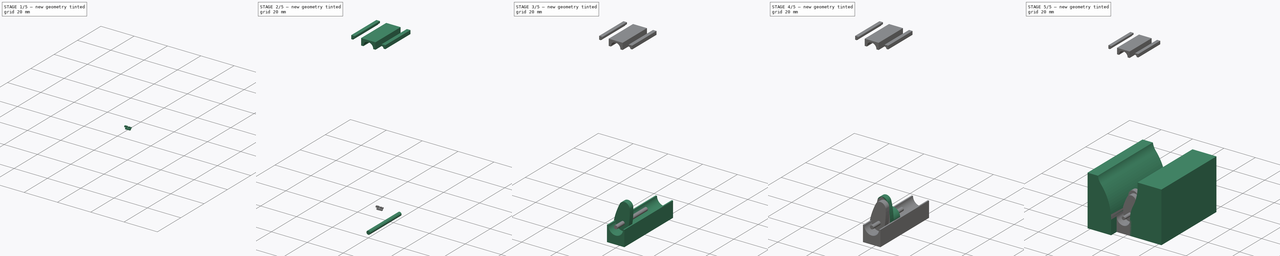
[diagram: build sequence overview — one tinted view per stage of 5, left to right]
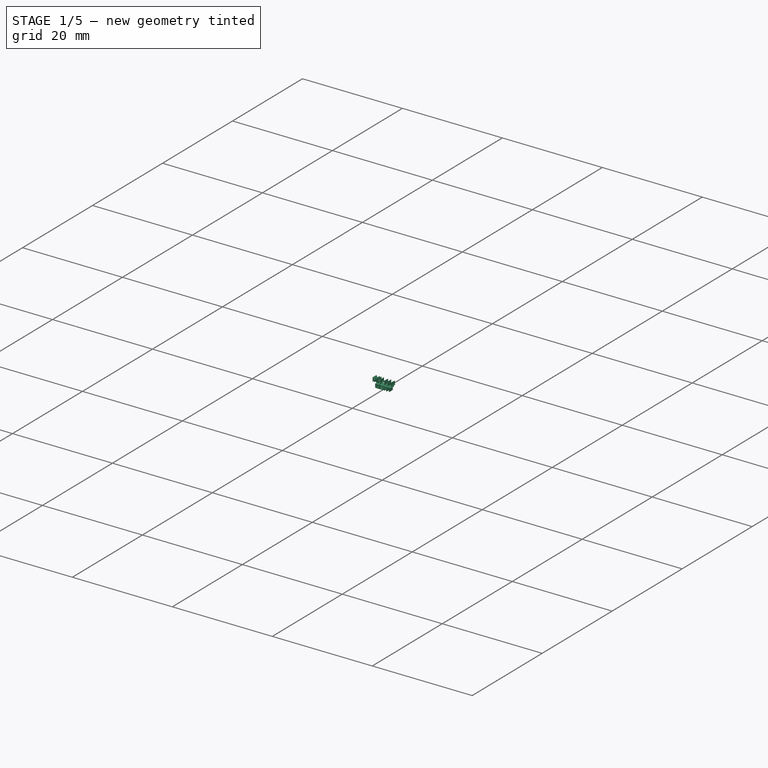
[diagram: stage 1 of 5 — iso view after this stage's code; geometry added in this stage tinted green]
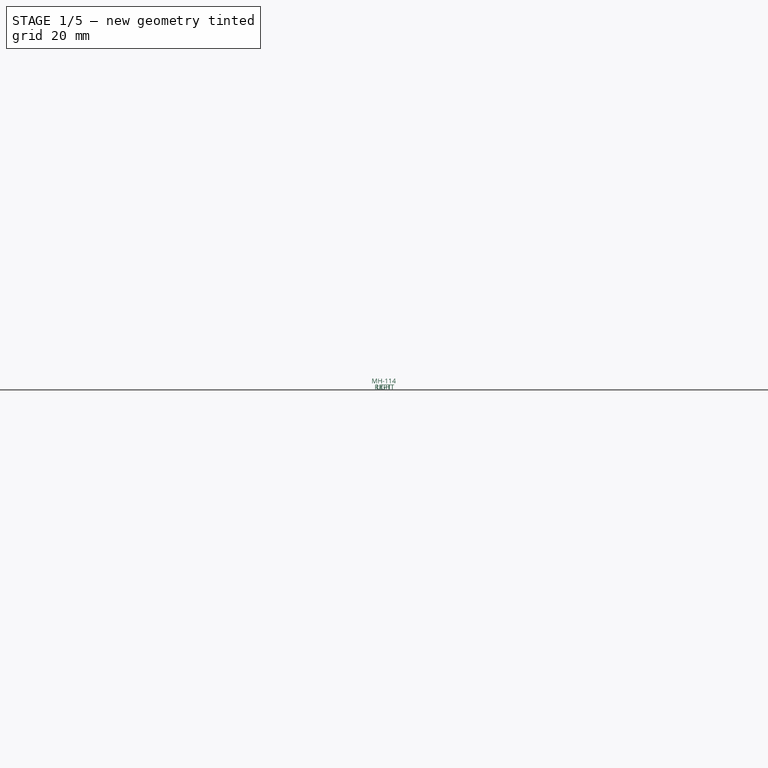
[diagram: stage 1 of 5 — front view after this stage's code; geometry added in this stage tinted green]
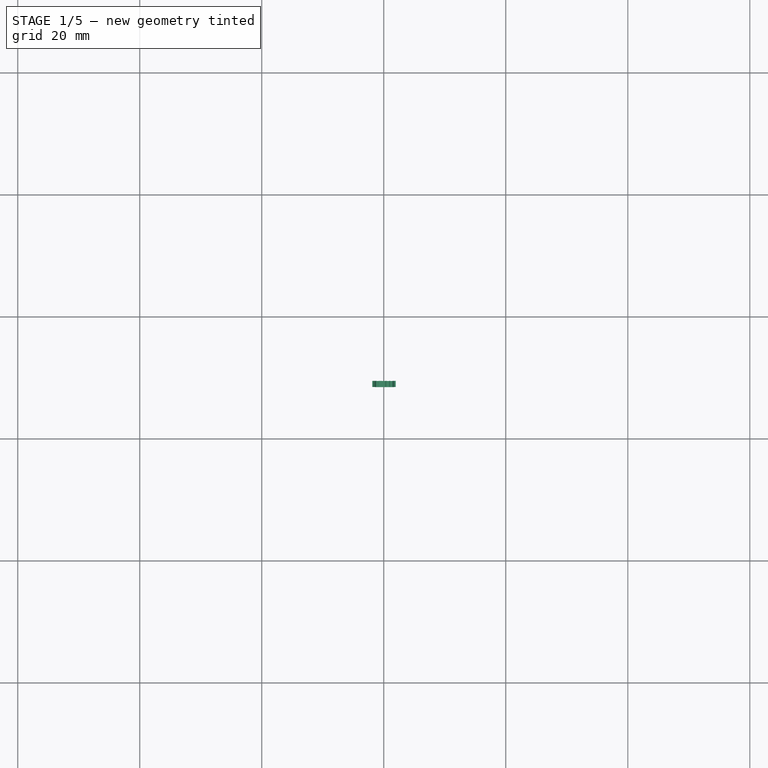
[diagram: stage 1 of 5 — top view after this stage's code; geometry added in this stage tinted green]
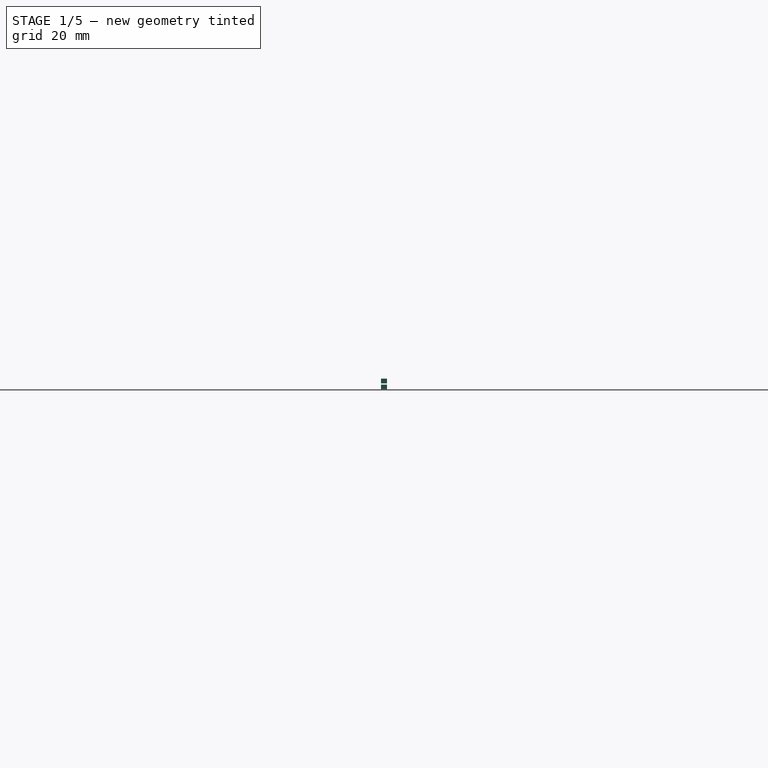
[diagram: stage 1 of 5 — right view after this stage's code; geometry added in this stage tinted green]
FCSTD DOCUMENT  (FreeCAD 0.16R6712 (Git))
Label: ControlReferenceGeometry
License: All rights reserved
LicenseURL: http://en.wikipedia.org/wiki/All_rights_reserved
objects: Part::Extrusion×11, Part::FeaturePython×9, Sketcher::SketchObject×6, Part::Part2DObjectPython×4
note: 30 computed .brp shape members not serialized (recipe doc carries the construction recipe); baked Part::Feature solids carry a one-line shape summary decoded from their .brp

FEATURE [Part::Part2DObjectPython] ShapeString  # Draft 2D object (typed FeaturePython)
  FontFile = <userpath> Eslinger/Desktop/MavicRetwist/OpenSans-Regular.ttf
  Placement = pos=(0,0,0) rot=(1,0,0;1.5708rad)
  Size = 1
  String = MH-114
  Tracking = 0
FEATURE [Part::Extrusion] Extrude013
  Base = -> ShapeString
  Dir = (0,1,0)
  Placement = pos=(-2,8.5,18) rot=(0,0,1;0rad)
  Solid = false
FEATURE [Part::Part2DObjectPython] ShapeString001  # Draft 2D object (typed FeaturePython)
  FontFile = <userpath> Eslinger/Desktop/MavicRetwist/OpenSans-Regular.ttf
  Placement = pos=(0,0,0) rot=(1,0,0;1.5708rad)
  Size = 1
  String = MH-114
  Tracking = 0
FEATURE [Part::Extrusion] Extrude014
  Base = -> ShapeString001
  Dir = (0,1,0)
  Placement = pos=(-2,8.5,18) rot=(0,0,1;0rad)
  Solid = false
FEATURE [Part::Part2DObjectPython] ShapeString002  # Draft 2D object (typed FeaturePython)
  FontFile = <userpath> Eslinger/Desktop/MavicRetwist/OpenSans-Regular.ttf
  Placement = pos=(0,0,0) rot=(1,0,0;1.5708rad)
  Size = 1
  String = LEFT
  Tracking = 0
FEATURE [Part::Extrusion] Extrude015  label="LEFT_Description"
  Base = -> ShapeString002
  Dir = (0,1,0)
  Placement = pos=(-1.25,8.5,17) rot=(0,0,1;0rad)
  Solid = false
FEATURE [Part::Part2DObjectPython] ShapeString003  # Draft 2D object (typed FeaturePython)
  FontFile = <userpath> Eslinger/Desktop/MavicRetwist/OpenSans-Regular.ttf
  Placement = pos=(0,0,0) rot=(1,0,0;1.5708rad)
  Size = 1
  String = RIGHT
  Tracking = 0
FEATURE [Part::Extrusion] Extrude016  label="RIGHT_Description"
  Base = -> ShapeString003
  Dir = (0,1,0)
  Placement = pos=(-1.5,8.5,17) rot=(0,0,1;0rad)
  Solid = false
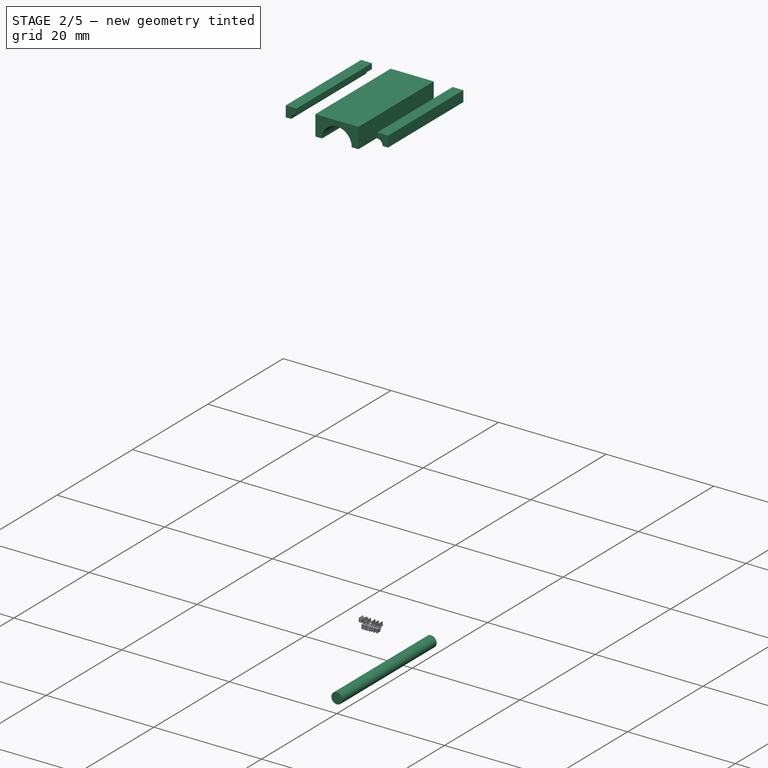
[diagram: stage 2 of 5 — iso view after this stage's code; geometry added in this stage tinted green]
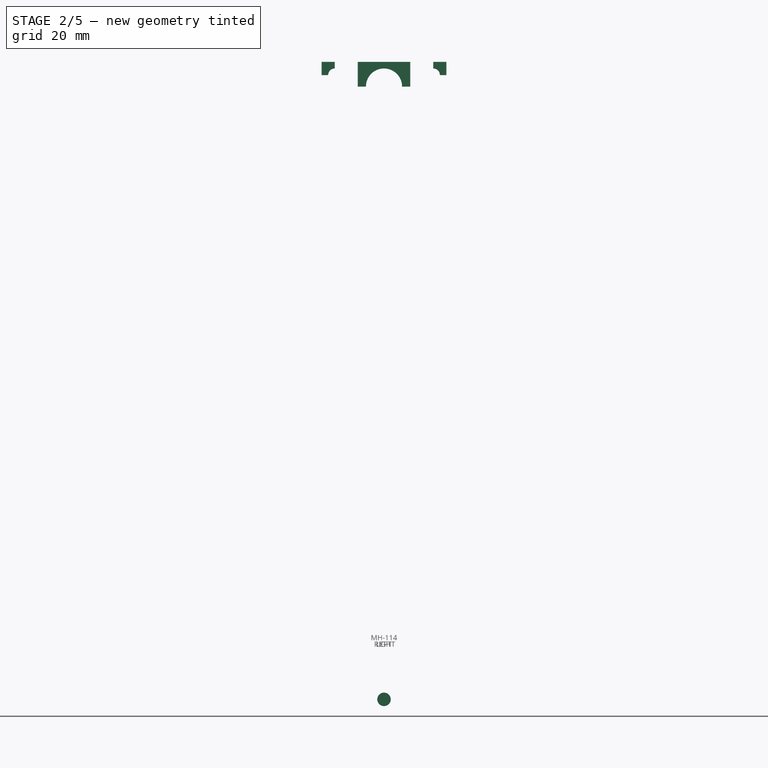
[diagram: stage 2 of 5 — front view after this stage's code; geometry added in this stage tinted green]
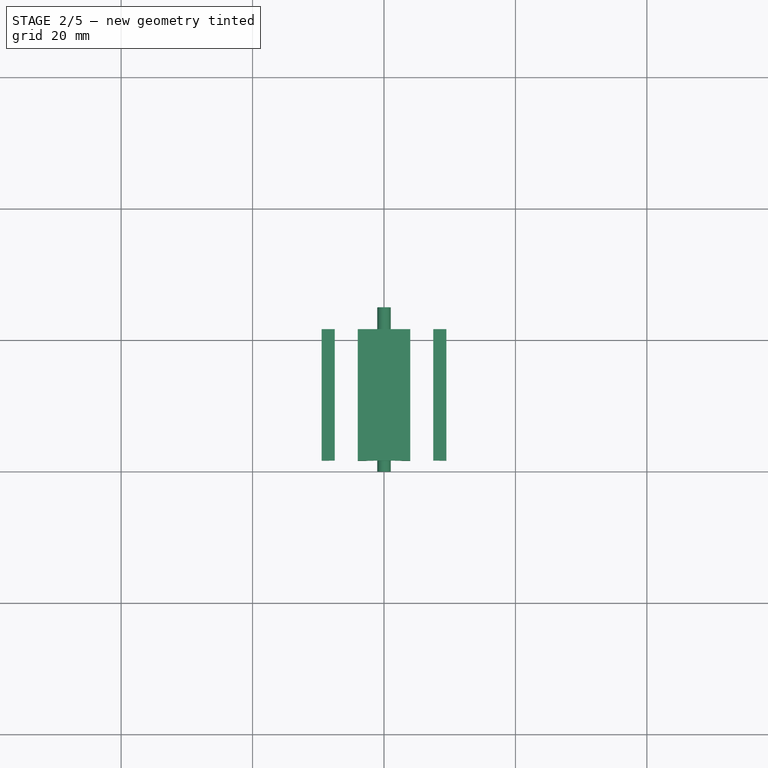
[diagram: stage 2 of 5 — top view after this stage's code; geometry added in this stage tinted green]
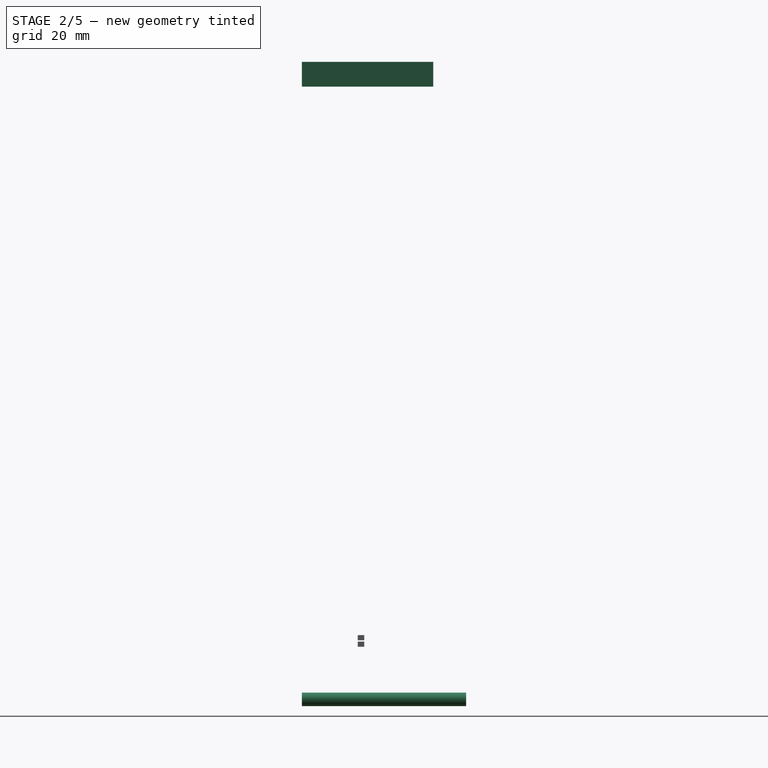
[diagram: stage 2 of 5 — right view after this stage's code; geometry added in this stage tinted green]
FEATURE [Part::Extrusion] Extrude007
  Base = -> Sketch005
  Dir = (0,25,0)
  Solid = true
FEATURE [Part::FeaturePython] Clone007  label="Clone of Extrude008"  # Draft clone (typed FeaturePython)
  Objects = -> [Extrude007]
  Scale = (1,1,1)
FEATURE [Part::Extrusion] Extrude012  label="RightHandTipRadius"
  Dir = (0,20,0)
  Solid = true
FEATURE [Part::FeaturePython] Clone008  label="LeftHandTipRadius"  # WARN: FeaturePython — macro-defined, semantics opaque (R4)
  Placement = pos=(0,20,0) rot=(0,0,1;3.14159rad)
  Scale = (1,1,1)
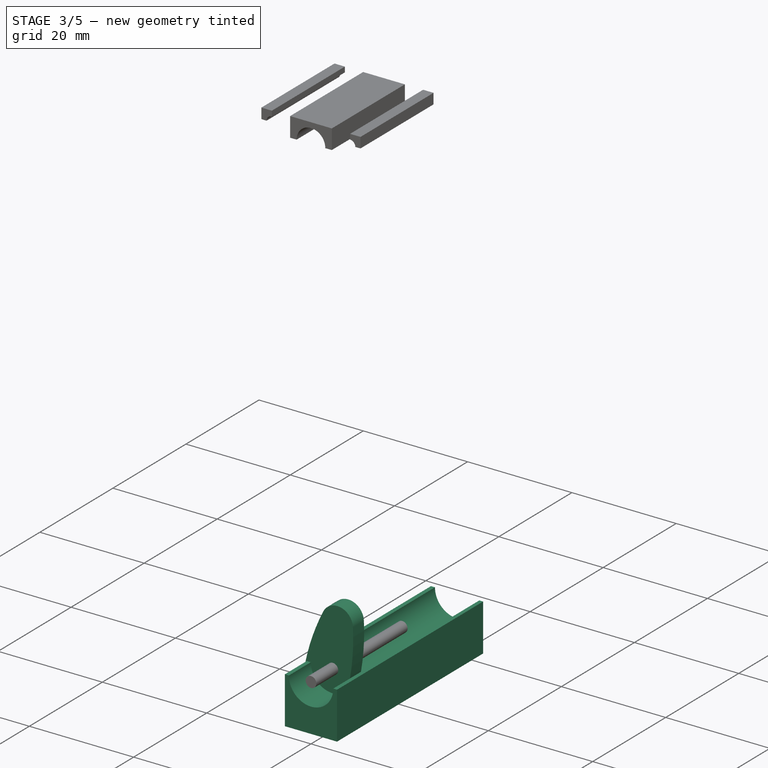
[diagram: stage 3 of 5 — iso view after this stage's code; geometry added in this stage tinted green]
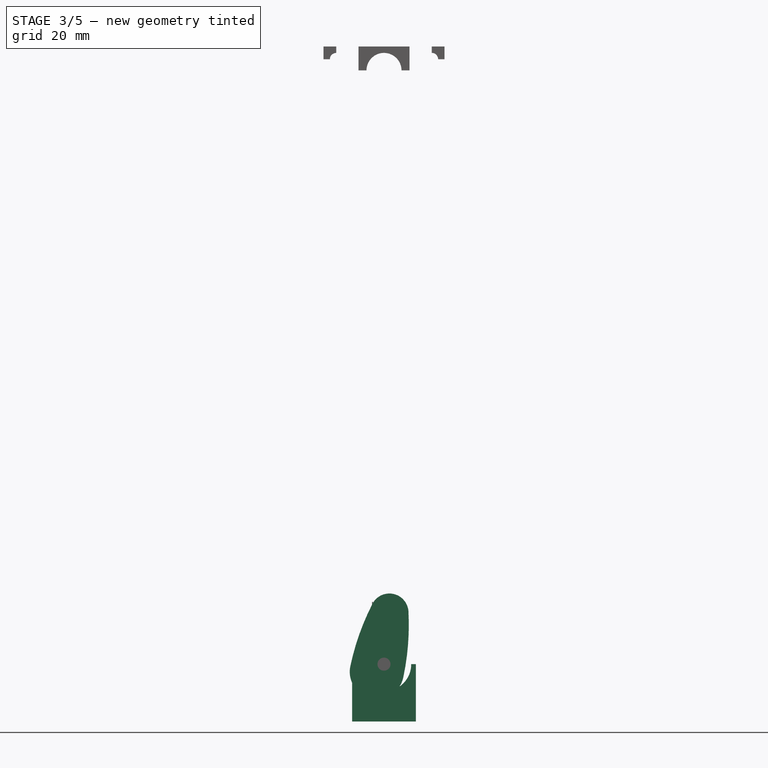
[diagram: stage 3 of 5 — front view after this stage's code; geometry added in this stage tinted green]
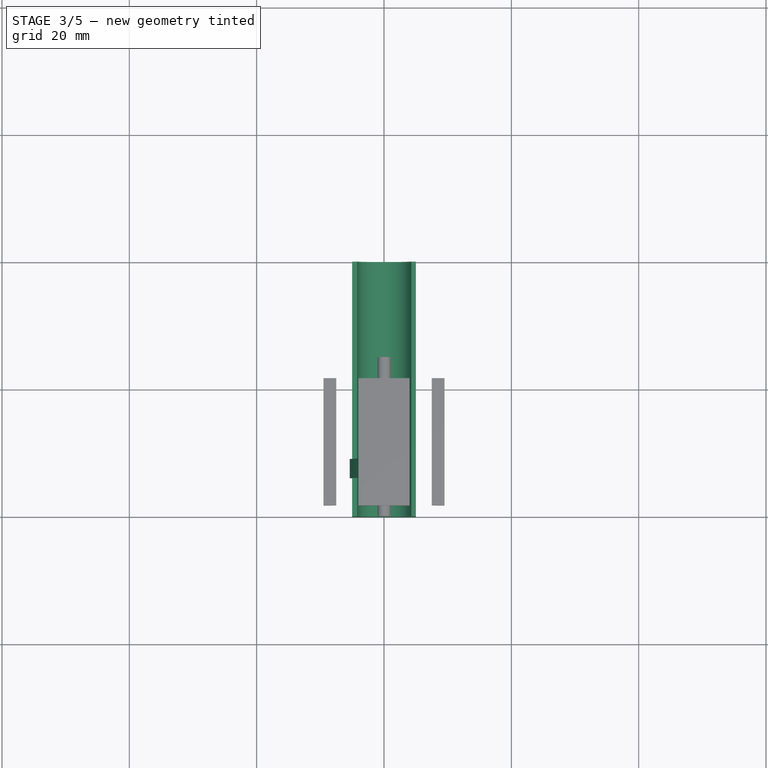
[diagram: stage 3 of 5 — top view after this stage's code; geometry added in this stage tinted green]
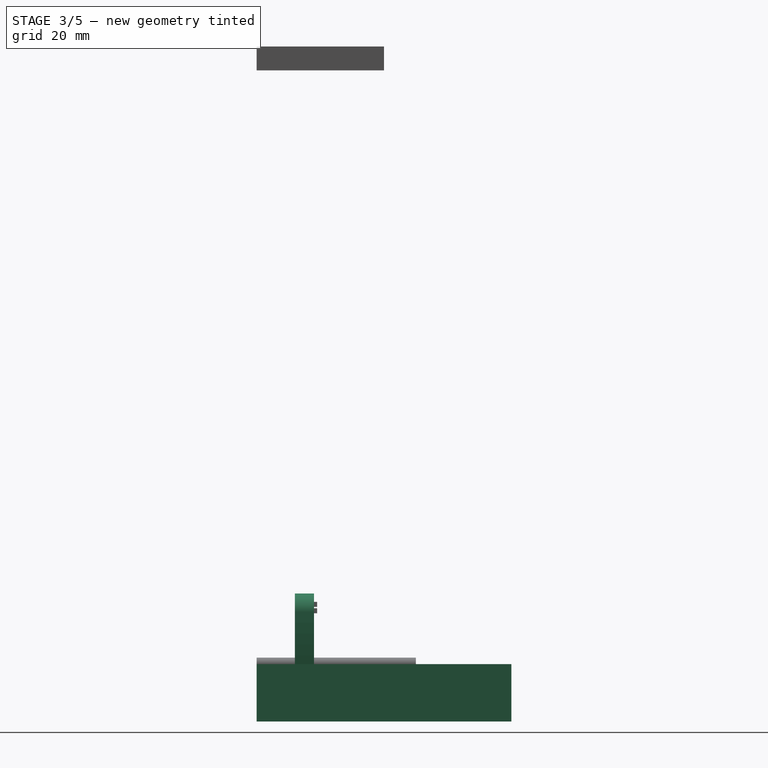
[diagram: stage 3 of 5 — right view after this stage's code; geometry added in this stage tinted green]
FEATURE [Sketcher::SketchObject] Sketch003
  Placement = pos=(0,0,0) rot=(1,0,0;1.5708rad)
  sketch-geometry (6):
    g0: LineSegment StartX=-5 StartY=0 StartZ=0 EndX=-5 EndY=9 EndZ=0
    g1: ArcOfCircle CenterX=0.0205745 CenterY=8.98154 CenterZ=0 NormalX=0 NormalY=0 NormalZ=1 Radius=4.25 StartAngle=3.13725 EndAngle=6.28753
    g2: LineSegment StartX=-4.22939 StartY=9 StartZ=0 EndX=-5 EndY=9 EndZ=0
    g3: LineSegment StartX=-5 StartY=0 StartZ=0 EndX=5 EndY=0 EndZ=0
    g4: LineSegment StartX=5 StartY=0 StartZ=0 EndX=5 EndY=9 EndZ=0
    g5: LineSegment StartX=4.27053 StartY=9 StartZ=0 EndX=5 EndY=9 EndZ=0
  constraints (17):
    c: PointOnObject(g0,g-1)
    c: Vertical(g0)
    c: DistanceY(g0,g0) = 9
    c: Coincident(g2,g1)
    c: Coincident(g2,g0)
    c: Horizontal(g2)
    c: Coincident(g3,g0)
    c: Horizontal(g3)
    c: Coincident(g4,g3)
    c: Vertical(g4)
    c: Coincident(g5,g1)
    c: Coincident(g5,g4)
    c: Horizontal(g5)
    c: DistanceY(g4,g4) = 9
    c: DistanceX(g3,g3) = 10
    c: DistanceX(g0,g-1) = 5
    c: Radius(g1) = 4.25
FEATURE [Part::Extrusion] Extrude002  label="RootCut"
  Base = -> Sketch003
  Dir = (0,40,0)
  Solid = true
FEATURE [Part::Extrusion] Extrude005
  Base = -> Sketch
  Dir = (0,3,0)
  Placement = pos=(2,6,-2) rot=(0,-1,0;0.10472rad)
  Solid = true
  expr: Placement.Rotation.Axis.y = 1
FEATURE [Part::FeaturePython] Clone005  label="Clone of Extrude007"  # Draft clone (typed FeaturePython)
  Objects = -> [Extrude005]
  Placement = pos=(-3,6,-1) rot=(0,1,0;0.20944rad)
  Scale = (1,1,1)
FEATURE [Part::FeaturePython] Clone006  label="RootCutRight"  # Draft clone (typed FeaturePython)
  Objects = -> [Extrude002]
  Scale = (1,1,1)
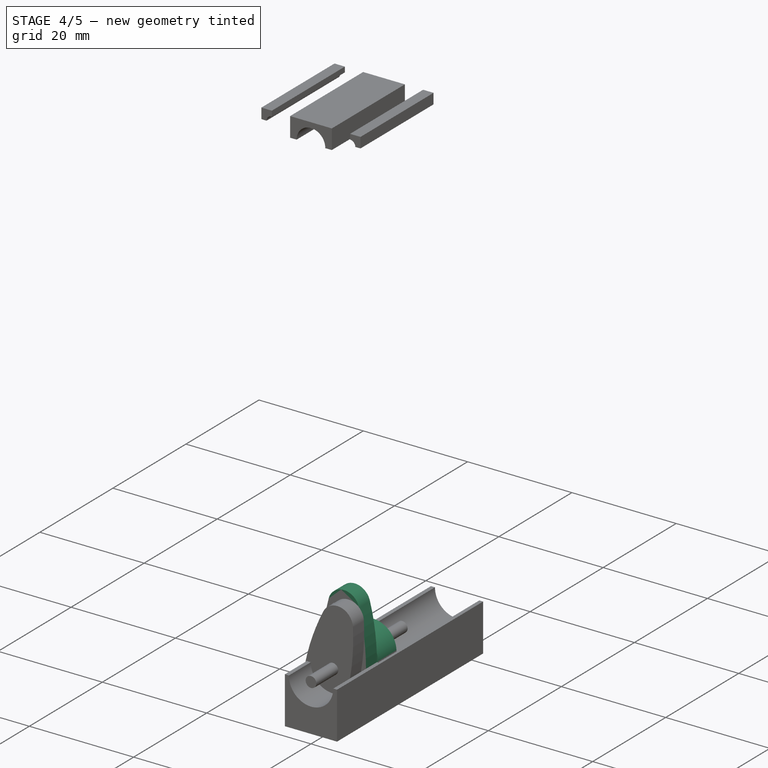
[diagram: stage 4 of 5 — iso view after this stage's code; geometry added in this stage tinted green]
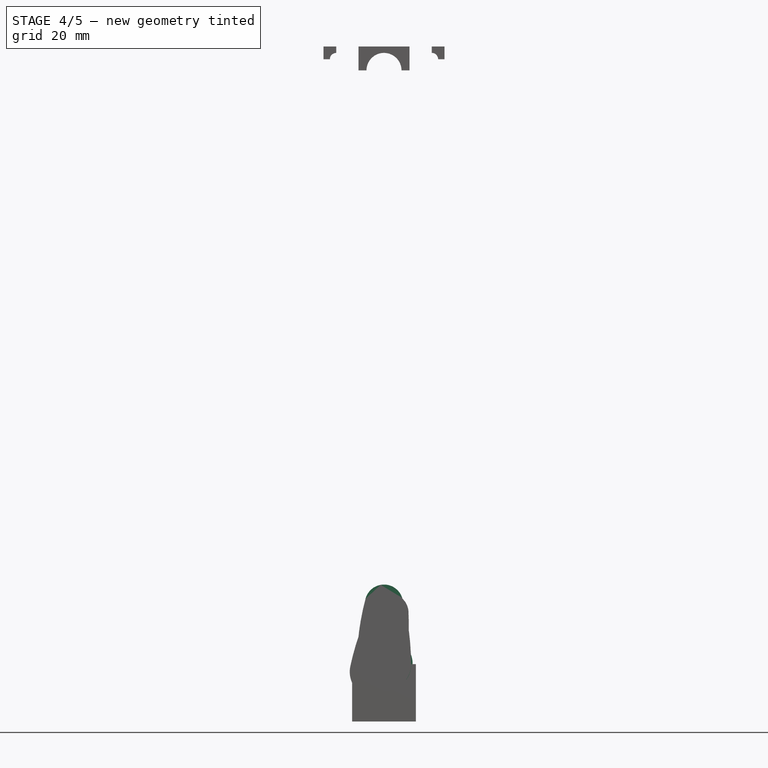
[diagram: stage 4 of 5 — front view after this stage's code; geometry added in this stage tinted green]
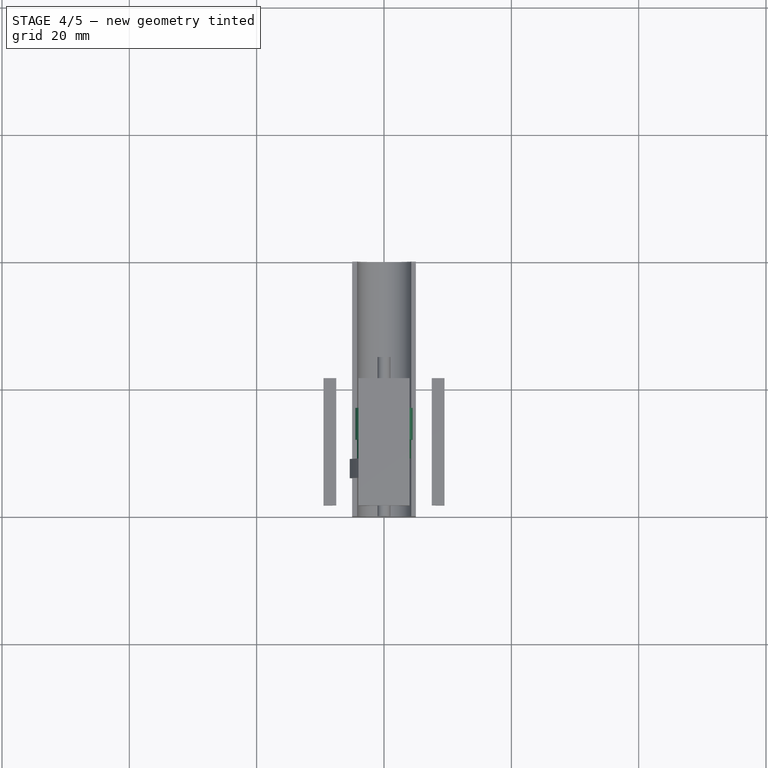
[diagram: stage 4 of 5 — top view after this stage's code; geometry added in this stage tinted green]
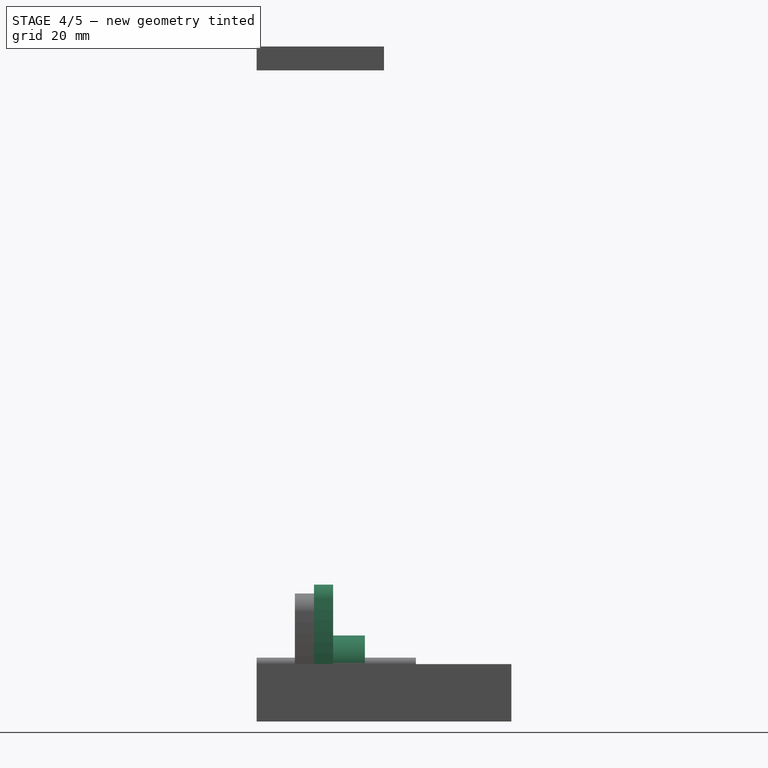
[diagram: stage 4 of 5 — right view after this stage's code; geometry added in this stage tinted green]
FEATURE [Sketcher::SketchObject] Sketch004
  Placement = pos=(0,0,0) rot=(1,0,0;1.5708rad)
  sketch-geometry (1):
    g0: Circle CenterX=0 CenterY=9 CenterZ=0 NormalX=0 NormalY=0 NormalZ=1 Radius=4.5
  constraints (3):
    c: PointOnObject(g0,g-2)
    c: Radius(g0) = 4.5
    c: DistanceY(g-1,g0) = 9
FEATURE [Part::Extrusion] Extrude006
  Base = -> Sketch004
  Dir = (0,5,0)
  Placement = pos=(0,12,0) rot=(0,0,1;0rad)
  Solid = true
FEATURE [Sketcher::SketchObject] Sketch005
  Placement = pos=(0,0,0) rot=(1,0,0;1.5708rad)
  sketch-geometry (1):
    g0: Circle CenterX=0 CenterY=9 CenterZ=0 NormalX=0 NormalY=0 NormalZ=1 Radius=1.025
  constraints (3):
    c: PointOnObject(g0,g-2)
    c: DistanceY(g-1,g0) = 9
    c: Radius(g0) = 1.025
FEATURE [Part::FeaturePython] Clone  label="Clone of Extrude005"  # Draft clone (typed FeaturePython)
  Objects = -> [Extrude005]
  Placement = pos=(0,9,0) rot=(0,0,1;0rad)
  Scale = (1,1,1)
FEATURE [Part::FeaturePython] Clone003  label="Clone of Extrude006"  # Draft clone (typed FeaturePython)
  Objects = -> [Extrude006]
  Placement = pos=(0,12,0) rot=(0,0,1;0rad)
  Scale = (1,1,1)
FEATURE [Part::FeaturePython] Clone004  label="LeftRoot"  # Draft clone (typed FeaturePython)
  Objects = -> [Clone]
  Placement = pos=(0,9,0) rot=(0,0,1;0rad)
  Scale = (1,1,1)
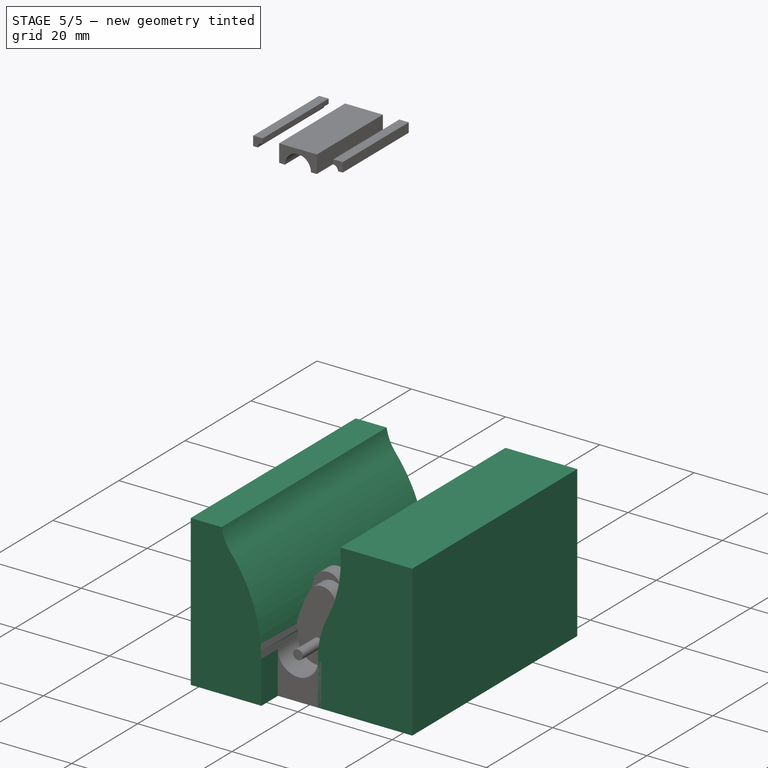
[diagram: stage 5 of 5 — iso view after this stage's code; geometry added in this stage tinted green]
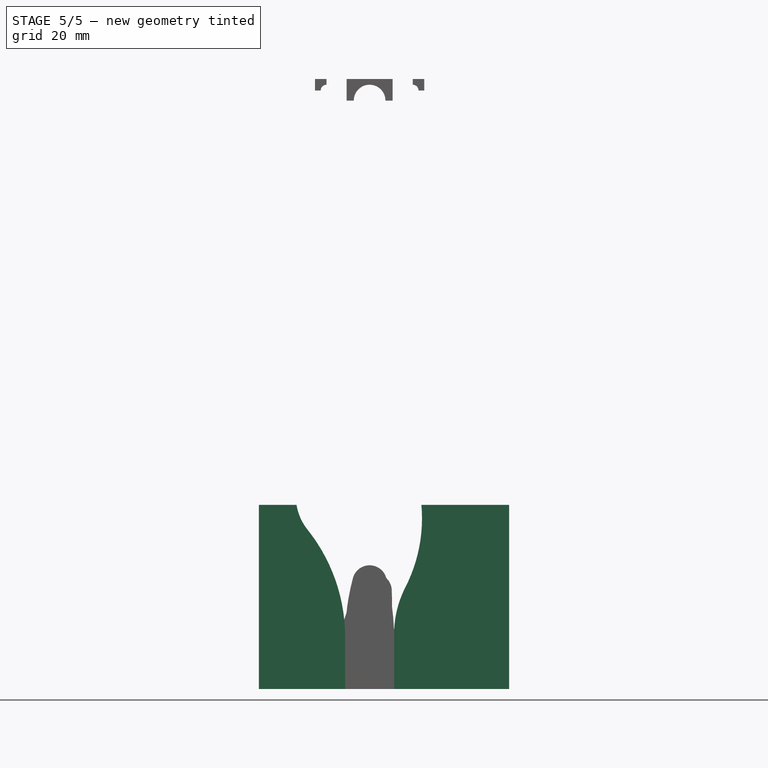
[diagram: stage 5 of 5 — front view after this stage's code; geometry added in this stage tinted green]
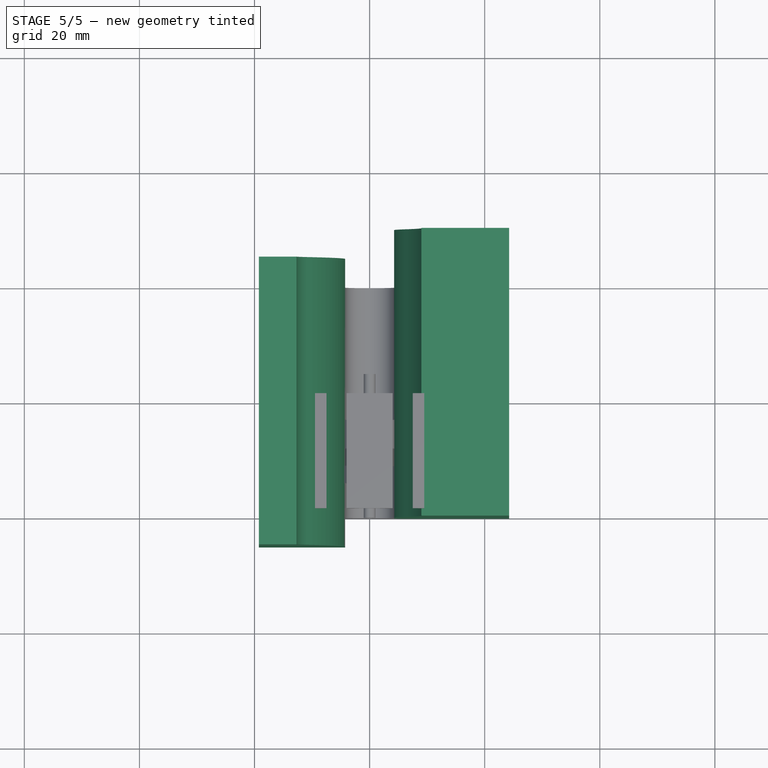
[diagram: stage 5 of 5 — top view after this stage's code; geometry added in this stage tinted green]
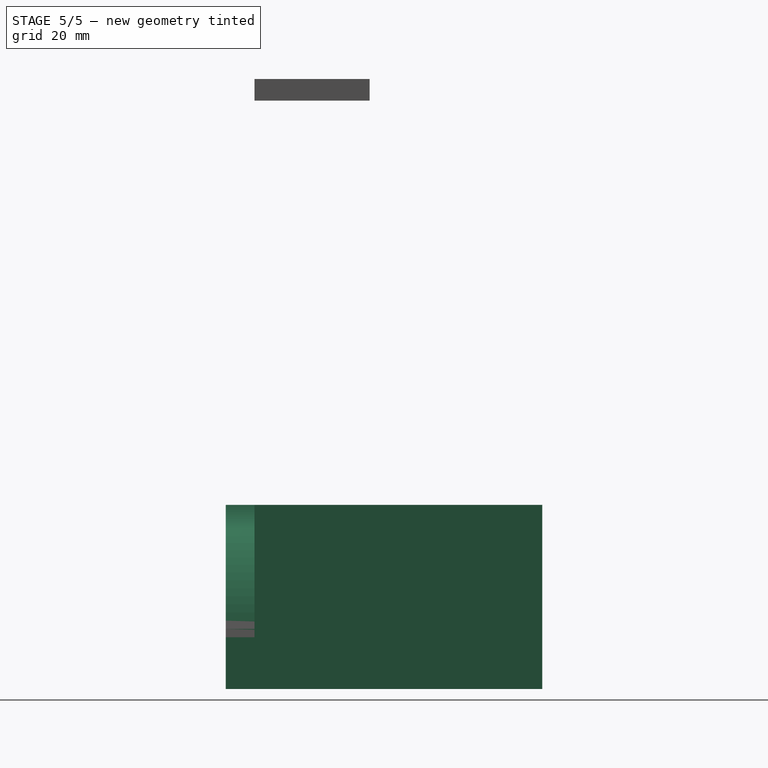
[diagram: stage 5 of 5 — right view after this stage's code; geometry added in this stage tinted green]
FEATURE [Sketcher::SketchObject] Sketch
  Placement = pos=(0,0,0) rot=(1,0,0;1.5708rad)
  sketch-geometry (4):
    g0: ArcOfCircle CenterX=0 CenterY=18.5 CenterZ=0 NormalX=0 NormalY=0 NormalZ=1 Radius=3 StartAngle=0.261654 EndAngle=2.87994
    g1: ArcOfCircle CenterX=-35.4752 CenterY=8.99998 CenterZ=0 NormalX=0 NormalY=0 NormalZ=1 Radius=39.7252 StartAngle=5.46138e-07 EndAngle=0.261654
    g2: ArcOfCircle CenterX=35.4752 CenterY=8.99998 CenterZ=0 NormalX=0 NormalY=0 NormalZ=1 Radius=39.7252 StartAngle=2.87994 EndAngle=3.14159
    g3: ArcOfCircle CenterX=0 CenterY=9 CenterZ=0 NormalX=0 NormalY=0 NormalZ=1 Radius=4.25 StartAngle=3.14159 EndAngle=6.28319
  constraints (11):
    c: PointOnObject(g0,g-2)
    c: PointOnObject(g1,g0)
    c: DistanceY(g-1,g1) = 9
    c: Coincident(g0,g1)
    c: DistanceY(g-1,g2) = 9
    c: Coincident(g2,g0)
    c: Tangent(g1,g0)
    c: Tangent(g0,g2)
    c: Radius(g0) = 3
    c: Coincident(g3,g1)
    c: Coincident(g3,g2)
FEATURE [Sketcher::SketchObject] Sketch001
  Placement = pos=(0,0,0) rot=(1,0,0;1.5708rad)
  sketch-geometry (6):
    g0: LineSegment StartX=-4.25 StartY=0 StartZ=0 EndX=-4.25 EndY=9.5 EndZ=0
    g1: ArcOfCircle CenterX=17.2146 CenterY=29.6658 CenterZ=0 NormalX=0 NormalY=0 NormalZ=1 Radius=26.3183 StartAngle=3.05279 EndAngle=3.61399
    g2: ArcOfCircle CenterX=-22.25 CenterY=9.50003 CenterZ=0 NormalX=0 NormalY=0 NormalZ=1 Radius=18 StartAngle=6.28318 EndAngle=6.75558
    g3: LineSegment StartX=-4.25 StartY=0 StartZ=0 EndX=-24.25 EndY=0 EndZ=0
    g4: LineSegment StartX=-24.25 StartY=0 StartZ=0 EndX=-24.25 EndY=32 EndZ=0
    g5: LineSegment StartX=-24.25 StartY=32 StartZ=0 EndX=-9 EndY=32 EndZ=0
  constraints (18):
    c: DistanceY(g-1,g1) = 32
    c: DistanceX(g1,g-1) = 9
    c: PointOnObject(g0,g-1)
    c: Vertical(g0)
    c: DistanceX(g0,g-1) = 4.25
    c: DistanceY(g0,g0) = 9.5
    c: Coincident(g2,g0)
    c: Coincident(g1,g2)
    c: Tangent(g2,g0)
    c: Tangent(g2,g1)
    c: Coincident(g3,g0)
    c: Horizontal(g3)
    c: DistanceX(g3,g3) = 20
    c: Coincident(g4,g3)
    c: Vertical(g4)
    c: Coincident(g5,g4)
    c: Horizontal(g5)
    c: Radius(g2) = 18
FEATURE [Part::Extrusion] Extrude  label="LeadingEdgeCut"
  Base = -> Sketch001
  Dir = (0,50,0)
  Solid = true
FEATURE [Sketcher::SketchObject] Sketch002
  Placement = pos=(0,0,0) rot=(1,0,0;1.5708rad)
  sketch-geometry (6):
    g0: LineSegment StartX=4.25 StartY=0 StartZ=0 EndX=4.25 EndY=9 EndZ=0
    g1: ArcOfCircle CenterX=34.25 CenterY=9 CenterZ=0 NormalX=0 NormalY=0 NormalZ=1 Radius=30 StartAngle=2.46848 EndAngle=3.14159
    g2: ArcOfCircle CenterX=3.52183 CenterY=33.5004 CenterZ=0 NormalX=0 NormalY=0 NormalZ=1 Radius=9.3 StartAngle=5.61007 EndAngle=6.12114
    g3: LineSegment StartX=4.25 StartY=0 StartZ=0 EndX=19.25 EndY=0 EndZ=0
    g4: LineSegment StartX=19.25 StartY=0 StartZ=0 EndX=19.25 EndY=32 EndZ=0
    g5: LineSegment StartX=19.25 StartY=32 StartZ=0 EndX=12.7 EndY=32 EndZ=0
  constraints (20):
    c: PointOnObject(g0,g-1)
    c: Vertical(g0)
    c: DistanceY(g0,g0) = 9
    c: DistanceX(g-1,g0) = 4.25
    c: DistanceX(g-1,g2) = 12.7
    c: DistanceY(g-1,g2) = 32
    c: Coincident(g2,g1)
    c: Coincident(g1,g0)
    c: Tangent(g1,g0)
    c: Tangent(g1,g2)
    c: Radius(g1) = 30
    c: Coincident(g3,g0)
    c: Horizontal(g3)
    c: Coincident(g4,g3)
    c: Vertical(g4)
    c: Coincident(g5,g4)
    c: Horizontal(g5)
    c: DistanceX(g3,g3) = 15
    c: Radius(g2) = 9.3
    c: Coincident(g5,g2)
FEATURE [Part::Extrusion] Extrude001  label="TrailingEdgeCut"
  Base = -> Sketch002
  Dir = (0,50,0)
  Placement = pos=(0,-9,0) rot=(0,0,1;0rad)
  Solid = true
FEATURE [Part::FeaturePython] Clone001  label="LeftLeadingEdgeCut"  # Draft clone (typed FeaturePython)
  Objects = -> [Extrude]
  Placement = pos=(0,50,0) rot=(0,0,1;3.14159rad)
  Scale = (1,1,1)
FEATURE [Part::FeaturePython] Clone002  label="LeftTrailingEdgeCut"  # Draft clone (typed FeaturePython)
  Objects = -> [Extrude001]
  Placement = pos=(0,45,0) rot=(0,0,1;3.14159rad)
  Scale = (1,1,1)
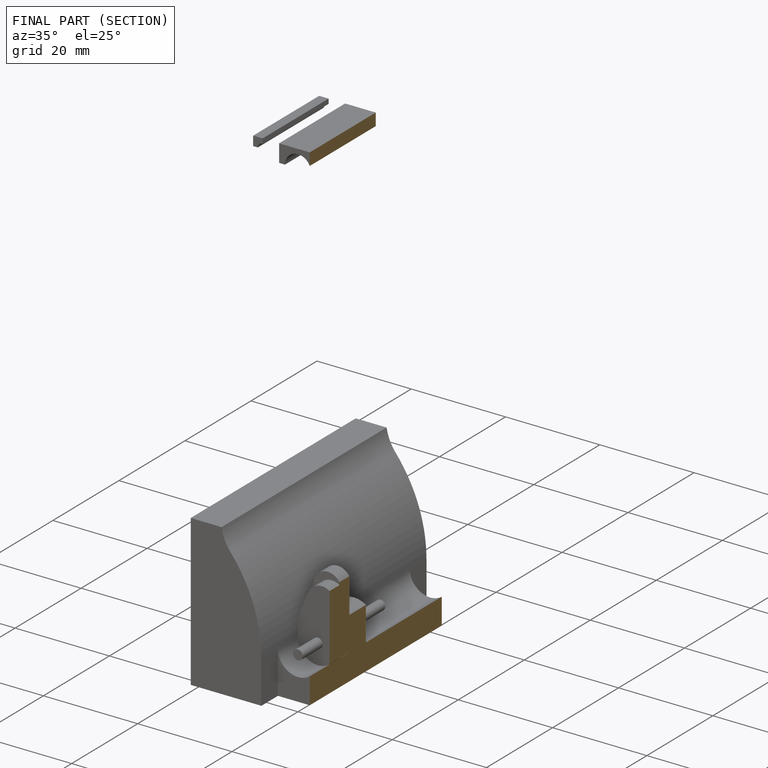
[diagram: finished part — half-section view (interior)]
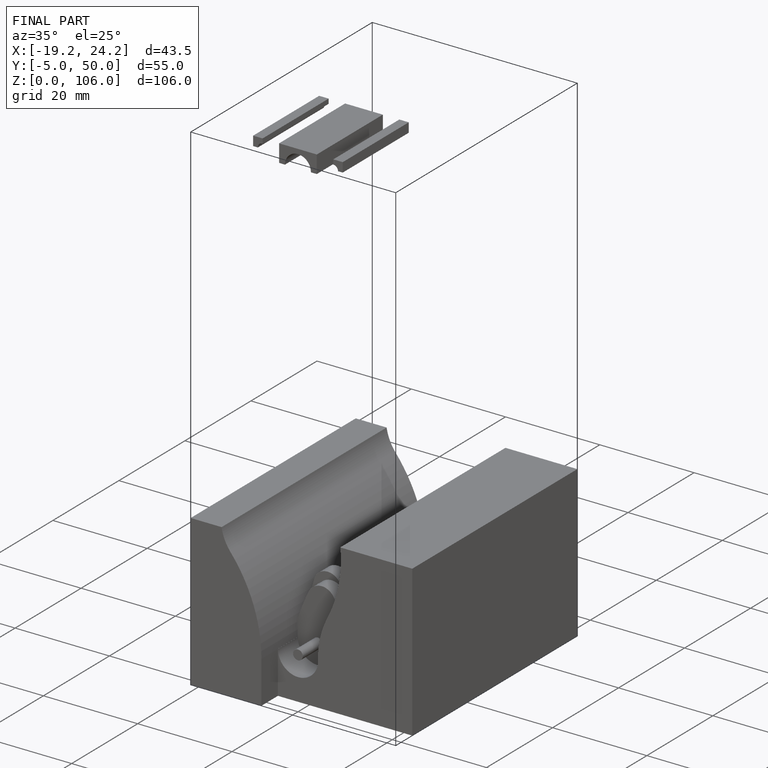
[diagram: finished part — iso view with bounding-box wireframe]
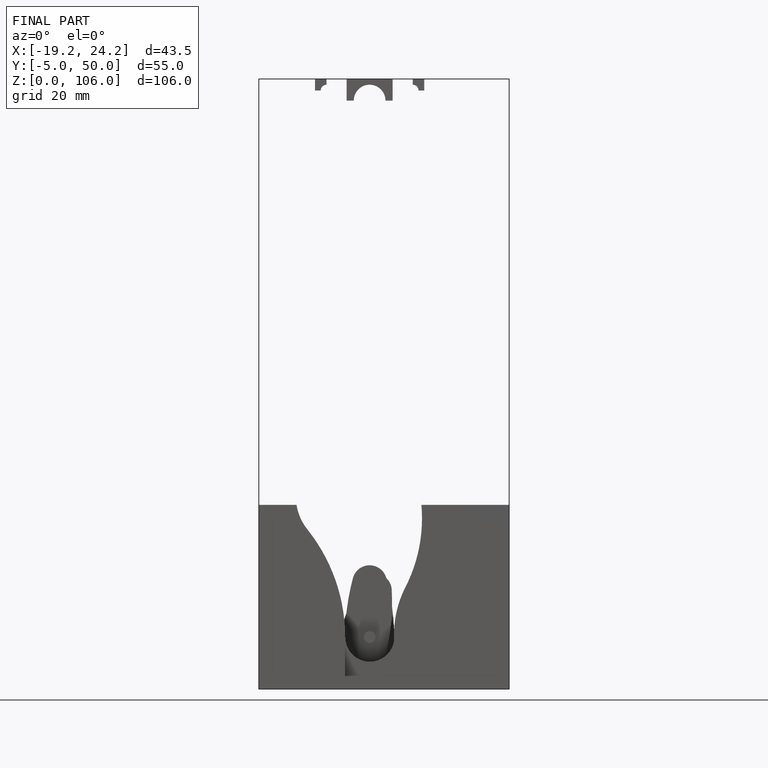
[diagram: finished part — front view with bounding-box wireframe]
